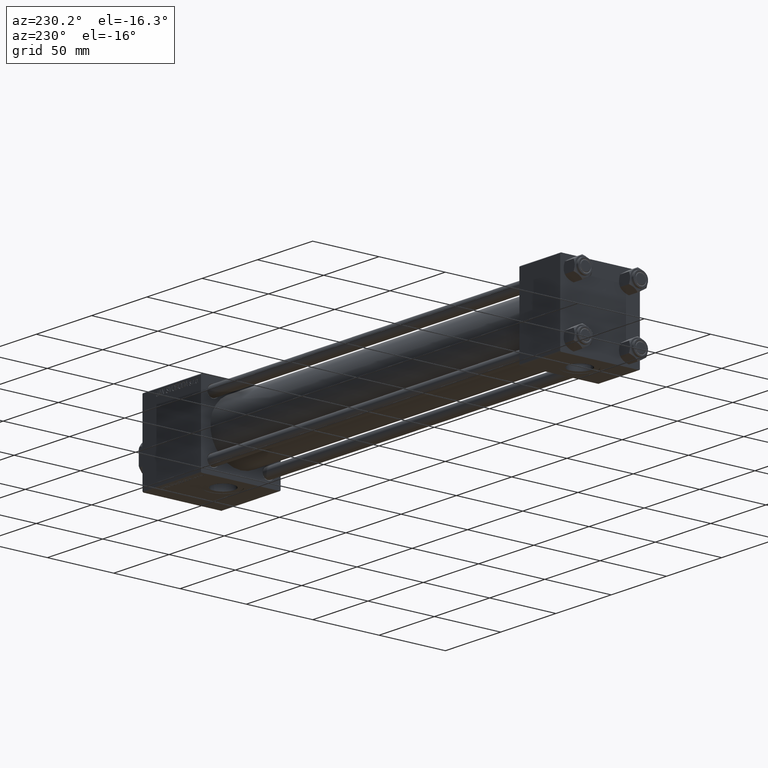
[diagram: clean part render]
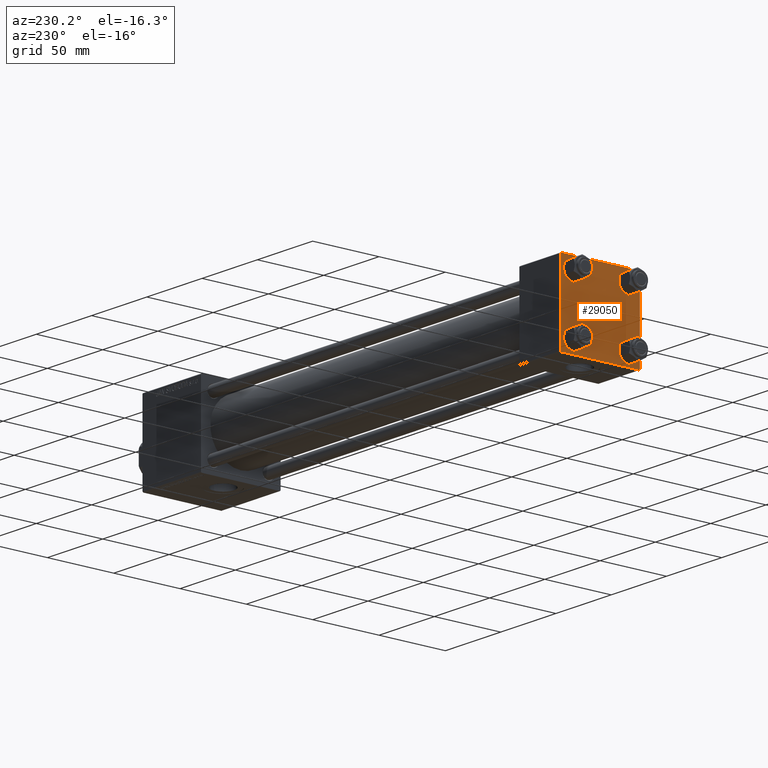
[diagram: same view with one face highlighted and labeled with its STEP entity id]
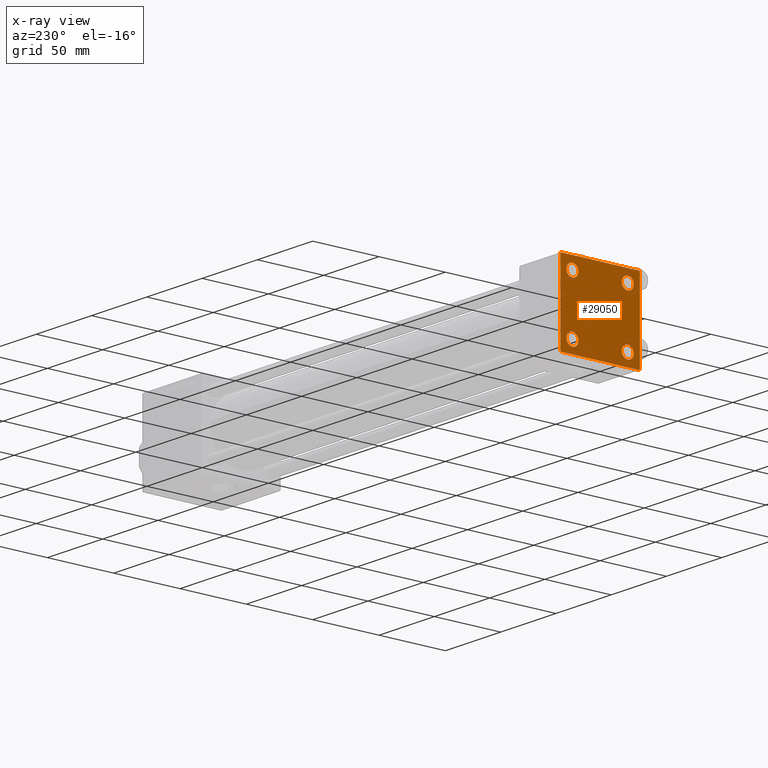
[diagram: x-ray of the same camera — body ghosted, the highlighted face saturated]
A machine part, auxiliary view. The second image highlights one B-rep face of the part: STEP entity #29050.
The next image is the same camera in x-ray: the body ghosted, the highlighted face saturated — about 0% of this face is hidden behind the body in this view.
In plain terms, the highlighted planar face has unit normal (-1, 0, 0).
Its self-contained STEP definition (entity closure, byte-faithful):
#653 = DIRECTION ( 'NONE',  ( 1.000000000000000000, -0.000000000000000000, 0.000000000000000000 ) ) ;
#1466 = DIRECTION ( 'NONE',  ( 0.000000000000000000, 0.000000000000000000, 1.000000000000000000 ) ) ;
#1647 = DIRECTION ( 'NONE',  ( 0.000000000000000000, 0.000000000000000000, 1.000000000000000000 ) ) ;
#1691 = DIRECTION ( 'NONE',  ( -0.000000000000000000, -0.7071067811865574537, -0.7071067811865376918 ) ) ;
#1932 = DIRECTION ( 'NONE',  ( 0.000000000000000000, -0.7071067811865474617, 0.7071067811865474617 ) ) ;
#2709 = CARTESIAN_POINT ( 'NONE',  ( 0.000000000000000000, 29.99999999999999289, 29.50000000000000000 ) ) ;
#2918 = DIRECTION ( 'NONE',  ( 1.000000000000000000, -0.000000000000000000, 0.000000000000000000 ) ) ;
#3942 = EDGE_CURVE ( 'NONE', #46006, #15183, #37708, .T. ) ;
#4560 = CARTESIAN_POINT ( 'NONE',  ( 0.000000000000000000, -20.84999999999999076, 25.35000000000002274 ) ) ;
#5125 = CARTESIAN_POINT ( 'NONE',  ( 0.000000000000000000, 0.000000000000000000, 0.000000000000000000 ) ) ;
#5154 = EDGE_CURVE ( 'NONE', #31214, #35907, #40931, .T. ) ;
#5499 = EDGE_LOOP ( 'NONE', ( #45808, #7967 ) ) ;
#5748 = ORIENTED_EDGE ( 'NONE', *, *, #8261, .T. ) ;
#5749 = LINE ( 'NONE', #9799, #32278 ) ;
#6101 = CARTESIAN_POINT ( 'NONE',  ( 0.000000000000000000, 29.49999999999999289, 30.00000000000000000 ) ) ;
#6163 = CARTESIAN_POINT ( 'NONE',  ( -0.000000000000000000, -29.74999999999999645, 29.74999999999999645 ) ) ;
#7285 = DIRECTION ( 'NONE',  ( 0.000000000000000000, 0.000000000000000000, 1.000000000000000000 ) ) ;
#7656 = EDGE_CURVE ( 'NONE', #43068, #20488, #13586, .T. ) ;
#7967 = ORIENTED_EDGE ( 'NONE', *, *, #30314, .T. ) ;
#8261 = EDGE_CURVE ( 'NONE', #26682, #46663, #19276, .T. ) ;
#8820 = VECTOR ( 'NONE', #46400, 1000.000000000000000 ) ;
#9084 = DIRECTION ( 'NONE',  ( 1.000000000000000000, -0.000000000000000000, 0.000000000000000000 ) ) ;
#9201 = CARTESIAN_POINT ( 'NONE',  ( 0.000000000000000000, -20.84999999999999076, -20.85000000000000497 ) ) ;
#9245 = ORIENTED_EDGE ( 'NONE', *, *, #12465, .T. ) ;
#9564 = AXIS2_PLACEMENT_3D ( 'NONE', #30391, #27084, #7285 ) ;
#9799 = CARTESIAN_POINT ( 'NONE',  ( 0.000000000000000000, -29.75000000000001066, -29.75000000000001066 ) ) ;
#9901 = CARTESIAN_POINT ( 'NONE',  ( 0.000000000000000000, -20.84999999999999076, -16.34999999999998721 ) ) ;
#10042 = CARTESIAN_POINT ( 'NONE',  ( 0.000000000000000000, 29.99999999999999289, 30.00000000000000000 ) ) ;
#11448 = CARTESIAN_POINT ( 'NONE',  ( 0.000000000000000000, -29.49999999999998579, 29.99999999999999289 ) ) ;
#11524 = CARTESIAN_POINT ( 'NONE',  ( 0.000000000000000000, 20.84999999999999787, 20.85000000000000142 ) ) ;
#12318 = EDGE_CURVE ( 'NONE', #13431, #41858, #24979, .T. ) ;
#12465 = EDGE_CURVE ( 'NONE', #44137, #18993, #45223, .T. ) ;
#12729 = FACE_BOUND ( 'NONE', #49772, .T. ) ;
#13068 = VERTEX_POINT ( 'NONE', #26045 ) ;
#13146 = CARTESIAN_POINT ( 'NONE',  ( 0.000000000000000000, 20.84999999999999787, -20.85000000000000142 ) ) ;
#13265 = DIRECTION ( 'NONE',  ( 0.000000000000000000, 0.000000000000000000, 1.000000000000000000 ) ) ;
#13431 = VERTEX_POINT ( 'NONE', #46756 ) ;
#13475 = ORIENTED_EDGE ( 'NONE', *, *, #3942, .T. ) ;
#13509 = LINE ( 'NONE', #36868, #38902 ) ;
#13586 = CIRCLE ( 'NONE', #40307, 4.500000000000017764 ) ;
#15116 = VECTOR ( 'NONE', #30763, 1000.000000000000114 ) ;
#15156 = CARTESIAN_POINT ( 'NONE',  ( 0.000000000000000000, -20.84999999999999076, -20.85000000000000497 ) ) ;
#15171 = CARTESIAN_POINT ( 'NONE',  ( 0.000000000000000000, 29.49999999999997868, -30.00000000000000000 ) ) ;
#15183 = VERTEX_POINT ( 'NONE', #34720 ) ;
#15233 = EDGE_CURVE ( 'NONE', #44733, #35907, #27357, .T. ) ;
#15336 = DIRECTION ( 'NONE',  ( 0.000000000000000000, 0.000000000000000000, 1.000000000000000000 ) ) ;
#15729 = LINE ( 'NONE', #36468, #23234 ) ;
#16133 = DIRECTION ( 'NONE',  ( 0.000000000000000000, 0.000000000000000000, 1.000000000000000000 ) ) ;
#16838 = AXIS2_PLACEMENT_3D ( 'NONE', #13146, #9084, #1466 ) ;
#17466 = AXIS2_PLACEMENT_3D ( 'NONE', #9201, #17569, #13265 ) ;
#17569 = DIRECTION ( 'NONE',  ( 1.000000000000000000, -0.000000000000000000, 0.000000000000000000 ) ) ;
#17573 = ORIENTED_EDGE ( 'NONE', *, *, #29624, .T. ) ;
#17756 = EDGE_LOOP ( 'NONE', ( #13475, #41501, #42380, #31049, #49862, #36012, #41764, #30265 ) ) ;
#18993 = VERTEX_POINT ( 'NONE', #45512 ) ;
#19055 = CARTESIAN_POINT ( 'NONE',  ( 0.000000000000000000, 20.84999999999999787, -25.35000000000001918 ) ) ;
#19058 = ORIENTED_EDGE ( 'NONE', *, *, #12318, .T. ) ;
#19227 = CARTESIAN_POINT ( 'NONE',  ( 0.000000000000000000, -30.00000000000000000, 29.99999999999999289 ) ) ;
#19276 = CIRCLE ( 'NONE', #9564, 4.500000000000017764 ) ;
#19531 = VECTOR ( 'NONE', #20985, 1000.000000000000114 ) ;
#20215 = DIRECTION ( 'NONE',  ( 0.000000000000000000, 0.000000000000000000, -1.000000000000000000 ) ) ;
#20225 = LINE ( 'NONE', #36210, #19531 ) ;
#20488 = VERTEX_POINT ( 'NONE', #29669 ) ;
#20715 = AXIS2_PLACEMENT_3D ( 'NONE', #11524, #2918, #15336 ) ;
#20856 = DIRECTION ( 'NONE',  ( -1.000000000000000000, 0.000000000000000000, -0.000000000000000000 ) ) ;
#20985 = DIRECTION ( 'NONE',  ( 0.000000000000000000, 0.7071067811865474617, -0.7071067811865474617 ) ) ;
#21564 = VECTOR ( 'NONE', #26044, 1000.000000000000000 ) ;
#22625 = ORIENTED_EDGE ( 'NONE', *, *, #23305, .T. ) ;
#23157 = CIRCLE ( 'NONE', #20715, 4.500000000000017764 ) ;
#23234 = VECTOR ( 'NONE', #1691, 999.9999999999998863 ) ;
#23305 = EDGE_CURVE ( 'NONE', #46663, #26682, #39910, .T. ) ;
#23702 = AXIS2_PLACEMENT_3D ( 'NONE', #25020, #24762, #1647 ) ;
#24439 = FACE_BOUND ( 'NONE', #41409, .T. ) ;
#24626 = CARTESIAN_POINT ( 'NONE',  ( 0.000000000000000000, 20.84999999999999787, 25.35000000000001918 ) ) ;
#24762 = DIRECTION ( 'NONE',  ( 1.000000000000000000, -0.000000000000000000, 0.000000000000000000 ) ) ;
#24979 = CIRCLE ( 'NONE', #16838, 4.500000000000017764 ) ;
#25020 = CARTESIAN_POINT ( 'NONE',  ( 0.000000000000000000, -20.84999999999999076, 20.85000000000000497 ) ) ;
#25456 = EDGE_CURVE ( 'NONE', #31214, #29617, #46896, .T. ) ;
#26044 = DIRECTION ( 'NONE',  ( 0.000000000000000000, 0.000000000000000000, -1.000000000000000000 ) ) ;
#26045 = CARTESIAN_POINT ( 'NONE',  ( 0.000000000000000000, -29.50000000000000000, -30.00000000000000711 ) ) ;
#26374 = VERTEX_POINT ( 'NONE', #15171 ) ;
#26383 = DIRECTION ( 'NONE',  ( 1.000000000000000000, -0.000000000000000000, 0.000000000000000000 ) ) ;
#26682 = VERTEX_POINT ( 'NONE', #33414 ) ;
#26891 = VECTOR ( 'NONE', #20215, 1000.000000000000000 ) ;
#27084 = DIRECTION ( 'NONE',  ( 1.000000000000000000, -0.000000000000000000, 0.000000000000000000 ) ) ;
#27357 = LINE ( 'NONE', #30921, #8820 ) ;
#28233 = FACE_BOUND ( 'NONE', #5499, .T. ) ;
#29014 = DIRECTION ( 'NONE',  ( 0.000000000000000000, -1.000000000000000000, -1.156482317317871725E-16 ) ) ;
#29050 = ADVANCED_FACE ( 'NONE', ( #24439, #47516, #12729, #28233, #39895 ), #36605, .T. ) ;
#29617 = VERTEX_POINT ( 'NONE', #36624 ) ;
#29624 = EDGE_CURVE ( 'NONE', #18993, #44137, #36937, .T. ) ;
#29669 = CARTESIAN_POINT ( 'NONE',  ( 0.000000000000000000, 20.84999999999999787, 16.34999999999998366 ) ) ;
#29975 = AXIS2_PLACEMENT_3D ( 'NONE', #49738, #26383, #41848 ) ;
#30265 = ORIENTED_EDGE ( 'NONE', *, *, #45828, .T. ) ;
#30314 = EDGE_CURVE ( 'NONE', #20488, #43068, #23157, .T. ) ;
#30391 = CARTESIAN_POINT ( 'NONE',  ( 0.000000000000000000, -20.84999999999999076, 20.85000000000000497 ) ) ;
#30763 = DIRECTION ( 'NONE',  ( -0.000000000000000000, 0.7071067811865474617, 0.7071067811865474617 ) ) ;
#30921 = CARTESIAN_POINT ( 'NONE',  ( 0.000000000000000000, 29.99999999999999289, 30.00000000000000000 ) ) ;
#31049 = ORIENTED_EDGE ( 'NONE', *, *, #40452, .T. ) ;
#31214 = VERTEX_POINT ( 'NONE', #31316 ) ;
#31316 = CARTESIAN_POINT ( 'NONE',  ( 0.000000000000000000, -30.00000000000000000, 29.49999999999999289 ) ) ;
#32278 = VECTOR ( 'NONE', #1932, 1000.000000000000114 ) ;
#32377 = EDGE_CURVE ( 'NONE', #15183, #26374, #15729, .T. ) ;
#33414 = CARTESIAN_POINT ( 'NONE',  ( 0.000000000000000000, -20.84999999999999076, 16.34999999999998721 ) ) ;
#34720 = CARTESIAN_POINT ( 'NONE',  ( 0.000000000000000000, 29.99999999999999289, -29.50000000000000000 ) ) ;
#35907 = VERTEX_POINT ( 'NONE', #11448 ) ;
#36012 = ORIENTED_EDGE ( 'NONE', *, *, #5154, .T. ) ;
#36210 = CARTESIAN_POINT ( 'NONE',  ( 0.000000000000000000, 29.74999999999999645, 29.74999999999999645 ) ) ;
#36468 = CARTESIAN_POINT ( 'NONE',  ( 0.000000000000000000, 29.74999999999957723, -29.75000000000040501 ) ) ;
#36605 = PLANE ( 'NONE',  #49455 ) ;
#36624 = CARTESIAN_POINT ( 'NONE',  ( 0.000000000000000000, -30.00000000000000000, -29.50000000000001776 ) ) ;
#36854 = DIRECTION ( 'NONE',  ( -0.000000000000000000, 0.000000000000000000, 1.000000000000000000 ) ) ;
#36868 = CARTESIAN_POINT ( 'NONE',  ( 0.000000000000000000, 29.99999999999999289, -30.00000000000000000 ) ) ;
#36937 = CIRCLE ( 'NONE', #17466, 4.500000000000017764 ) ;
#37708 = LINE ( 'NONE', #10042, #21564 ) ;
#37937 = DIRECTION ( 'NONE',  ( 0.000000000000000000, 0.000000000000000000, 1.000000000000000000 ) ) ;
#38902 = VECTOR ( 'NONE', #29014, 1000.000000000000000 ) ;
#39895 = FACE_OUTER_BOUND ( 'NONE', #17756, .T. ) ;
#39910 = CIRCLE ( 'NONE', #23702, 4.500000000000017764 ) ;
#40307 = AXIS2_PLACEMENT_3D ( 'NONE', #46297, #49372, #37937 ) ;
#40452 = EDGE_CURVE ( 'NONE', #13068, #29617, #5749, .T. ) ;
#40931 = LINE ( 'NONE', #6163, #15116 ) ;
#41409 = EDGE_LOOP ( 'NONE', ( #22625, #5748 ) ) ;
#41501 = ORIENTED_EDGE ( 'NONE', *, *, #32377, .T. ) ;
#41764 = ORIENTED_EDGE ( 'NONE', *, *, #15233, .F. ) ;
#41848 = DIRECTION ( 'NONE',  ( 0.000000000000000000, 0.000000000000000000, 1.000000000000000000 ) ) ;
#41858 = VERTEX_POINT ( 'NONE', #19055 ) ;
#42380 = ORIENTED_EDGE ( 'NONE', *, *, #43681, .T. ) ;
#43068 = VERTEX_POINT ( 'NONE', #24626 ) ;
#43681 = EDGE_CURVE ( 'NONE', #26374, #13068, #13509, .T. ) ;
#44104 = EDGE_CURVE ( 'NONE', #41858, #13431, #50256, .T. ) ;
#44137 = VERTEX_POINT ( 'NONE', #9901 ) ;
#44408 = AXIS2_PLACEMENT_3D ( 'NONE', #15156, #653, #16133 ) ;
#44733 = VERTEX_POINT ( 'NONE', #6101 ) ;
#45223 = CIRCLE ( 'NONE', #44408, 4.500000000000017764 ) ;
#45512 = CARTESIAN_POINT ( 'NONE',  ( 0.000000000000000000, -20.84999999999999076, -25.35000000000002274 ) ) ;
#45808 = ORIENTED_EDGE ( 'NONE', *, *, #7656, .T. ) ;
#45828 = EDGE_CURVE ( 'NONE', #44733, #46006, #20225, .T. ) ;
#46006 = VERTEX_POINT ( 'NONE', #2709 ) ;
#46297 = CARTESIAN_POINT ( 'NONE',  ( 0.000000000000000000, 20.84999999999999787, 20.85000000000000142 ) ) ;
#46400 = DIRECTION ( 'NONE',  ( 0.000000000000000000, -1.000000000000000000, -1.156482317317871725E-16 ) ) ;
#46663 = VERTEX_POINT ( 'NONE', #4560 ) ;
#46756 = CARTESIAN_POINT ( 'NONE',  ( 0.000000000000000000, 20.84999999999999787, -16.34999999999998366 ) ) ;
#46896 = LINE ( 'NONE', #19227, #26891 ) ;
#46905 = ORIENTED_EDGE ( 'NONE', *, *, #44104, .T. ) ;
#47516 = FACE_BOUND ( 'NONE', #49210, .T. ) ;
#49210 = EDGE_LOOP ( 'NONE', ( #9245, #17573 ) ) ;
#49372 = DIRECTION ( 'NONE',  ( 1.000000000000000000, -0.000000000000000000, 0.000000000000000000 ) ) ;
#49455 = AXIS2_PLACEMENT_3D ( 'NONE', #5125, #20856, #36854 ) ;
#49738 = CARTESIAN_POINT ( 'NONE',  ( 0.000000000000000000, 20.84999999999999787, -20.85000000000000142 ) ) ;
#49772 = EDGE_LOOP ( 'NONE', ( #19058, #46905 ) ) ;
#49862 = ORIENTED_EDGE ( 'NONE', *, *, #25456, .F. ) ;
#50256 = CIRCLE ( 'NONE', #29975, 4.500000000000017764 ) ;